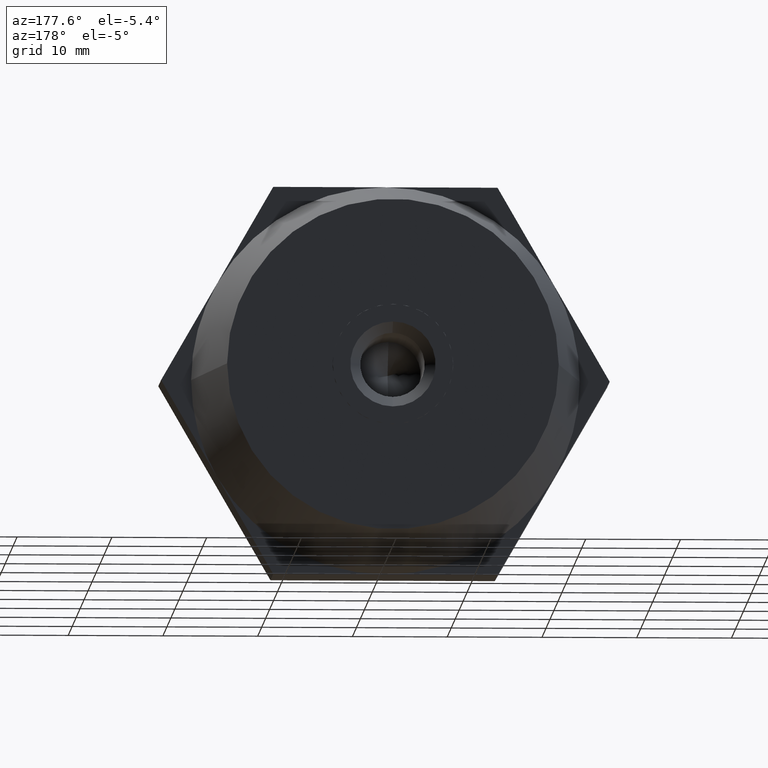
[diagram: clean part render]
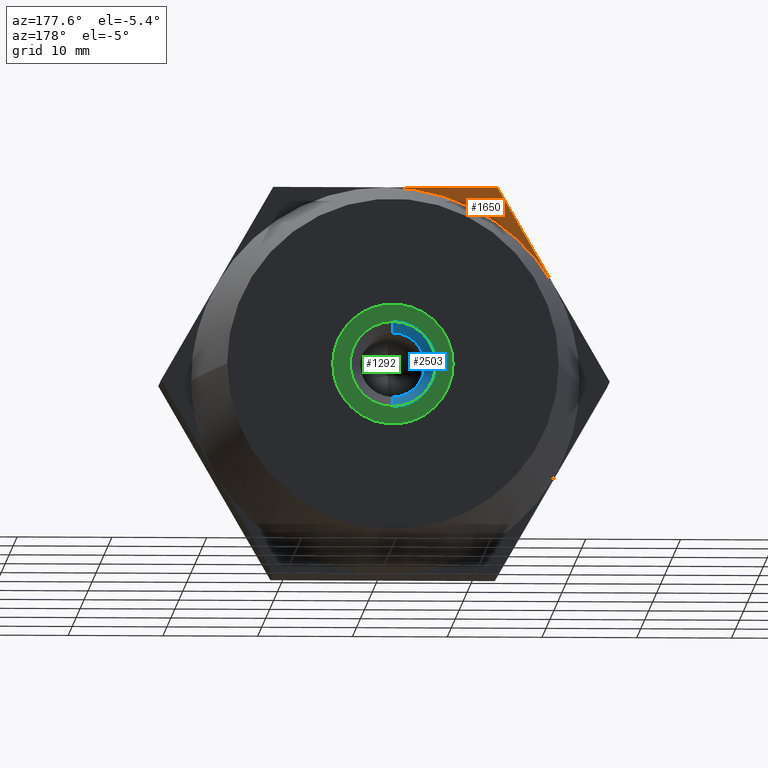
[diagram: same view with three faces highlighted in distinct colors, each labeled with its STEP entity id]
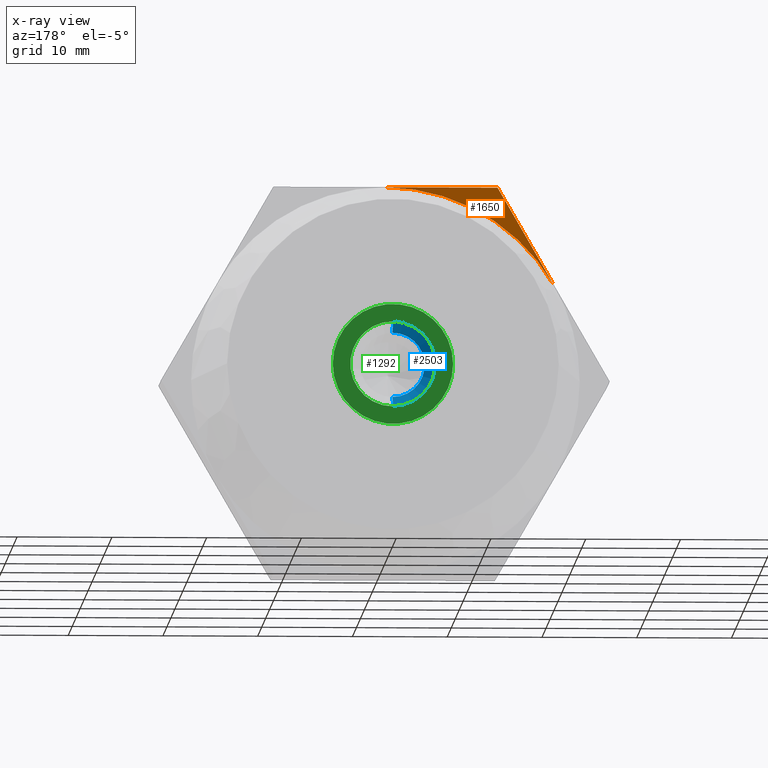
[diagram: x-ray of the same camera — body ghosted, the three highlighted faces saturated]
A machine part, auxiliary view with three faces highlighted in distinct colors.
The next image is the same camera in x-ray (body ghosted, the three faces saturated) — at least one of them is partly hidden behind the body in this view.
Their STEP definitions:

[orange] entity #1650 — the highlighted planar face has unit normal (0, 1, 0).
#150 = EDGE_CURVE ( 'NONE', #173, #1089, #2188, .T. ) ;
#173 = VERTEX_POINT ( 'NONE', #3638 ) ;
#281 = LINE ( 'NONE', #2677, #1715 ) ;
#520 = ORIENTED_EDGE ( 'NONE', *, *, #3507, .T. ) ;
#627 = CARTESIAN_POINT ( 'NONE',  ( -3.004629197474314500E-015, 3.500000000000000000, 20.50000000000000000 ) ) ;
#729 = CARTESIAN_POINT ( 'NONE',  ( -11.83568051838734000, 3.500000000000000000, 20.50000000000000000 ) ) ;
#804 = AXIS2_PLACEMENT_3D ( 'NONE', #805, #1093, #3436 ) ;
#805 = CARTESIAN_POINT ( 'NONE',  ( 2.326828918379969800E-015, 3.500000000000000000, 0.0000000000000000000 ) ) ;
#884 = ORIENTED_EDGE ( 'NONE', *, *, #2487, .T. ) ;
#1089 = VERTEX_POINT ( 'NONE', #627 ) ;
#1093 = DIRECTION ( 'NONE',  ( -1.224646799147353900E-016, 1.000000000000000000, 0.0000000000000000000 ) ) ;
#1116 = EDGE_LOOP ( 'NONE', ( #1138, #520, #884 ) ) ;
#1138 = ORIENTED_EDGE ( 'NONE', *, *, #150, .F. ) ;
#1153 = DIRECTION ( 'NONE',  ( 0.4999999999999998900, 0.0000000000000000000, 0.8660254037844387100 ) ) ;
#1484 = AXIS2_PLACEMENT_3D ( 'NONE', #2773, #3659, #2204 ) ;
#1604 = PLANE ( 'NONE',  #1484 ) ;
#1650 = ADVANCED_FACE ( 'NONE', ( #1805 ), #1604, .T. ) ;
#1715 = VECTOR ( 'NONE', #2730, 1000.000000000000000 ) ;
#1805 = FACE_OUTER_BOUND ( 'NONE', #1116, .T. ) ;
#2146 = VERTEX_POINT ( 'NONE', #729 ) ;
#2188 = CIRCLE ( 'NONE', #804, 20.50000000000000000 ) ;
#2204 = DIRECTION ( 'NONE',  ( 0.0000000000000000000, 0.0000000000000000000, 1.000000000000000000 ) ) ;
#2217 = VECTOR ( 'NONE', #1153, 1000.000000000000000 ) ;
#2487 = EDGE_CURVE ( 'NONE', #2146, #1089, #281, .T. ) ;
#2677 = CARTESIAN_POINT ( 'NONE',  ( -11.83568051838734000, 3.500000000000000000, 20.50000000000000000 ) ) ;
#2730 = DIRECTION ( 'NONE',  ( 1.000000000000000000, 0.0000000000000000000, 1.465672779255763900E-016 ) ) ;
#2773 = CARTESIAN_POINT ( 'NONE',  ( 0.0000000000000000000, 3.500000000000000000, 0.0000000000000000000 ) ) ;
#2930 = CARTESIAN_POINT ( 'NONE',  ( -23.67136103677464800, 3.500000000000000000, -6.892897232898371300E-017 ) ) ;
#2956 = LINE ( 'NONE', #2930, #2217 ) ;
#3436 = DIRECTION ( 'NONE',  ( -1.000000000000000000, -1.269309860470834500E-016, 0.0000000000000000000 ) ) ;
#3507 = EDGE_CURVE ( 'NONE', #173, #2146, #2956, .T. ) ;
#3638 = CARTESIAN_POINT ( 'NONE',  ( -17.75352077758099900, 3.500000000000000000, 10.25000000000000000 ) ) ;
#3659 = DIRECTION ( 'NONE',  ( 0.0000000000000000000, 1.000000000000000000, 0.0000000000000000000 ) ) ;

[blue] entity #2503 — the highlighted conical surface has half-angle 45 deg.
#81 = CARTESIAN_POINT ( 'NONE',  ( 5.510910596163088600E-016, 14.00000000000000000, -4.500000000000000000 ) ) ;
#110 = AXIS2_PLACEMENT_3D ( 'NONE', #490, #2820, #744 ) ;
#160 = CIRCLE ( 'NONE', #110, 4.500000000000000000 ) ;
#339 = EDGE_LOOP ( 'NONE', ( #2720, #3122, #2194, #1253 ) ) ;
#356 = CIRCLE ( 'NONE', #2573, 3.399999999999999900 ) ;
#490 = CARTESIAN_POINT ( 'NONE',  ( 0.0000000000000000000, 14.00000000000000000, 0.0000000000000000000 ) ) ;
#503 = DIRECTION ( 'NONE',  ( 0.0000000000000000000, 1.000000000000000000, 0.0000000000000000000 ) ) ;
#619 = DIRECTION ( 'NONE',  ( 0.0000000000000000000, 0.0000000000000000000, 1.000000000000000000 ) ) ;
#744 = DIRECTION ( 'NONE',  ( 0.0000000000000000000, 0.0000000000000000000, 1.000000000000000000 ) ) ;
#840 = CARTESIAN_POINT ( 'NONE',  ( 0.0000000000000000000, 14.00000000000000000, 4.500000000000000000 ) ) ;
#883 = VERTEX_POINT ( 'NONE', #1043 ) ;
#1043 = CARTESIAN_POINT ( 'NONE',  ( 4.163799117101000600E-016, 12.90000000000000000, -3.399999999999999900 ) ) ;
#1193 = CARTESIAN_POINT ( 'NONE',  ( 5.510910596163088600E-016, 14.00000000000000000, -4.500000000000000000 ) ) ;
#1250 = VECTOR ( 'NONE', #3159, 1000.000000000000000 ) ;
#1253 = ORIENTED_EDGE ( 'NONE', *, *, #1323, .F. ) ;
#1258 = EDGE_CURVE ( 'NONE', #3043, #3762, #160, .T. ) ;
#1323 = EDGE_CURVE ( 'NONE', #2187, #3762, #3101, .T. ) ;
#1351 = CARTESIAN_POINT ( 'NONE',  ( 0.0000000000000000000, 12.90000000000000000, 3.399999999999999900 ) ) ;
#1380 = CARTESIAN_POINT ( 'NONE',  ( 0.0000000000000000000, 12.90000000000000000, 0.0000000000000000000 ) ) ;
#1513 = CARTESIAN_POINT ( 'NONE',  ( 0.0000000000000000000, 14.00000000000000000, 0.0000000000000000000 ) ) ;
#1569 = CONICAL_SURFACE ( 'NONE', #3549, 4.500000000000000000, 0.7853981633974490600 ) ;
#1844 = VECTOR ( 'NONE', #2424, 1000.000000000000000 ) ;
#2130 = DIRECTION ( 'NONE',  ( 0.0000000000000000000, 1.000000000000000000, 0.0000000000000000000 ) ) ;
#2187 = VERTEX_POINT ( 'NONE', #1351 ) ;
#2194 = ORIENTED_EDGE ( 'NONE', *, *, #1258, .T. ) ;
#2424 = DIRECTION ( 'NONE',  ( 8.659560562354939000E-017, 0.7071067811865470200, -0.7071067811865480200 ) ) ;
#2503 = ADVANCED_FACE ( 'NONE', ( #3227 ), #1569, .F. ) ;
#2573 = AXIS2_PLACEMENT_3D ( 'NONE', #1380, #503, #2615 ) ;
#2615 = DIRECTION ( 'NONE',  ( 0.0000000000000000000, 0.0000000000000000000, 1.000000000000000000 ) ) ;
#2720 = ORIENTED_EDGE ( 'NONE', *, *, #3171, .F. ) ;
#2729 = CARTESIAN_POINT ( 'NONE',  ( 0.0000000000000000000, 14.00000000000000000, 4.500000000000000000 ) ) ;
#2820 = DIRECTION ( 'NONE',  ( 0.0000000000000000000, 1.000000000000000000, 0.0000000000000000000 ) ) ;
#2843 = EDGE_CURVE ( 'NONE', #883, #3043, #2957, .T. ) ;
#2957 = LINE ( 'NONE', #81, #1844 ) ;
#3043 = VERTEX_POINT ( 'NONE', #1193 ) ;
#3101 = LINE ( 'NONE', #840, #1250 ) ;
#3122 = ORIENTED_EDGE ( 'NONE', *, *, #2843, .T. ) ;
#3159 = DIRECTION ( 'NONE',  ( 0.0000000000000000000, 0.7071067811865470200, 0.7071067811865480200 ) ) ;
#3171 = EDGE_CURVE ( 'NONE', #883, #2187, #356, .T. ) ;
#3227 = FACE_OUTER_BOUND ( 'NONE', #339, .T. ) ;
#3549 = AXIS2_PLACEMENT_3D ( 'NONE', #1513, #2130, #619 ) ;
#3762 = VERTEX_POINT ( 'NONE', #2729 ) ;

[green] entity #1292 — the highlighted planar face has unit normal (0, 1, 0).
#19 = AXIS2_PLACEMENT_3D ( 'NONE', #584, #882, #1466 ) ;
#109 = CARTESIAN_POINT ( 'NONE',  ( 3.174999999999999800, 14.00000000000000000, -5.499261314031190100 ) ) ;
#110 = AXIS2_PLACEMENT_3D ( 'NONE', #490, #2820, #744 ) ;
#160 = CIRCLE ( 'NONE', #110, 4.500000000000000000 ) ;
#179 = ORIENTED_EDGE ( 'NONE', *, *, #383, .F. ) ;
#306 = DIRECTION ( 'NONE',  ( 0.0000000000000000000, 0.0000000000000000000, 1.000000000000000000 ) ) ;
#338 = DIRECTION ( 'NONE',  ( -0.0000000000000000000, -1.000000000000000000, -0.0000000000000000000 ) ) ;
#383 = EDGE_CURVE ( 'NONE', #3762, #3043, #2798, .T. ) ;
#390 = VERTEX_POINT ( 'NONE', #913 ) ;
#457 = ORIENTED_EDGE ( 'NONE', *, *, #1258, .F. ) ;
#490 = CARTESIAN_POINT ( 'NONE',  ( 0.0000000000000000000, 14.00000000000000000, 0.0000000000000000000 ) ) ;
#554 = CIRCLE ( 'NONE', #1530, 6.349999999999999600 ) ;
#584 = CARTESIAN_POINT ( 'NONE',  ( 1.830041491932940100E-015, 14.00000000000000000, 9.189900495611212100E-018 ) ) ;
#664 = DIRECTION ( 'NONE',  ( -0.0000000000000000000, -1.000000000000000000, -0.0000000000000000000 ) ) ;
#684 = CIRCLE ( 'NONE', #3527, 6.349999999999999600 ) ;
#721 = CARTESIAN_POINT ( 'NONE',  ( 1.830041491932940100E-015, 14.00000000000000000, 9.189900495611212100E-018 ) ) ;
#744 = DIRECTION ( 'NONE',  ( 0.0000000000000000000, 0.0000000000000000000, 1.000000000000000000 ) ) ;
#841 = CIRCLE ( 'NONE', #1799, 6.349999999999999600 ) ;
#871 = CIRCLE ( 'NONE', #3730, 6.349999999999999600 ) ;
#882 = DIRECTION ( 'NONE',  ( -0.0000000000000000000, -1.000000000000000000, -0.0000000000000000000 ) ) ;
#913 = CARTESIAN_POINT ( 'NONE',  ( 6.349999999999999600, 14.00000000000000000, -1.493124698241546000E-015 ) ) ;
#991 = VERTEX_POINT ( 'NONE', #1472 ) ;
#1086 = AXIS2_PLACEMENT_3D ( 'NONE', #721, #664, #3026 ) ;
#1136 = DIRECTION ( 'NONE',  ( 0.0000000000000000000, 1.000000000000000000, 0.0000000000000000000 ) ) ;
#1183 = EDGE_CURVE ( 'NONE', #390, #3183, #1533, .T. ) ;
#1193 = CARTESIAN_POINT ( 'NONE',  ( 5.510910596163088600E-016, 14.00000000000000000, -4.500000000000000000 ) ) ;
#1195 = DIRECTION ( 'NONE',  ( -0.0000000000000000000, -1.000000000000000000, -0.0000000000000000000 ) ) ;
#1198 = CARTESIAN_POINT ( 'NONE',  ( 1.830041491932940100E-015, 14.00000000000000000, 9.189900495611212100E-018 ) ) ;
#1258 = EDGE_CURVE ( 'NONE', #3043, #3762, #160, .T. ) ;
#1292 = ADVANCED_FACE ( 'NONE', ( #2790, #1899 ), #2256, .T. ) ;
#1354 = VERTEX_POINT ( 'NONE', #3455 ) ;
#1460 = EDGE_LOOP ( 'NONE', ( #1625, #2035, #1808, #2792, #3756, #2328 ) ) ;
#1466 = DIRECTION ( 'NONE',  ( 1.776356839400250500E-015, 0.0000000000000000000, 1.000000000000000000 ) ) ;
#1472 = CARTESIAN_POINT ( 'NONE',  ( -3.174999999999999800, 14.00000000000000000, -5.499261314031190100 ) ) ;
#1530 = AXIS2_PLACEMENT_3D ( 'NONE', #2973, #1195, #3255 ) ;
#1533 = CIRCLE ( 'NONE', #1086, 6.349999999999999600 ) ;
#1625 = ORIENTED_EDGE ( 'NONE', *, *, #1912, .F. ) ;
#1702 = VERTEX_POINT ( 'NONE', #109 ) ;
#1779 = DIRECTION ( 'NONE',  ( -0.0000000000000000000, -1.000000000000000000, -0.0000000000000000000 ) ) ;
#1799 = AXIS2_PLACEMENT_3D ( 'NONE', #1198, #1779, #306 ) ;
#1808 = ORIENTED_EDGE ( 'NONE', *, *, #1183, .F. ) ;
#1813 = DIRECTION ( 'NONE',  ( 0.0000000000000000000, 1.000000000000000000, 0.0000000000000000000 ) ) ;
#1864 = DIRECTION ( 'NONE',  ( 0.0000000000000000000, 0.0000000000000000000, 1.000000000000000000 ) ) ;
#1899 = FACE_BOUND ( 'NONE', #2134, .T. ) ;
#1912 = EDGE_CURVE ( 'NONE', #3599, #1354, #841, .T. ) ;
#2035 = ORIENTED_EDGE ( 'NONE', *, *, #3219, .F. ) ;
#2073 = CARTESIAN_POINT ( 'NONE',  ( -3.174999999999999800, 14.00000000000000000, 5.499261314031190100 ) ) ;
#2097 = CARTESIAN_POINT ( 'NONE',  ( 0.0000000000000000000, 14.00000000000000000, 0.0000000000000000000 ) ) ;
#2134 = EDGE_LOOP ( 'NONE', ( #179, #457 ) ) ;
#2256 = PLANE ( 'NONE',  #3574 ) ;
#2325 = CARTESIAN_POINT ( 'NONE',  ( 3.174999999999999800, 14.00000000000000000, 5.499261314031190100 ) ) ;
#2328 = ORIENTED_EDGE ( 'NONE', *, *, #2740, .F. ) ;
#2388 = EDGE_CURVE ( 'NONE', #991, #1702, #3736, .T. ) ;
#2431 = CARTESIAN_POINT ( 'NONE',  ( 1.830041491932940100E-015, 14.00000000000000000, 9.189900495611212100E-018 ) ) ;
#2533 = DIRECTION ( 'NONE',  ( -0.0000000000000000000, -1.000000000000000000, -0.0000000000000000000 ) ) ;
#2556 = CARTESIAN_POINT ( 'NONE',  ( 0.0000000000000000000, 14.00000000000000000, 0.0000000000000000000 ) ) ;
#2729 = CARTESIAN_POINT ( 'NONE',  ( 0.0000000000000000000, 14.00000000000000000, 4.500000000000000000 ) ) ;
#2740 = EDGE_CURVE ( 'NONE', #1354, #991, #554, .T. ) ;
#2772 = AXIS2_PLACEMENT_3D ( 'NONE', #2097, #1813, #3242 ) ;
#2790 = FACE_OUTER_BOUND ( 'NONE', #1460, .T. ) ;
#2792 = ORIENTED_EDGE ( 'NONE', *, *, #3760, .F. ) ;
#2798 = CIRCLE ( 'NONE', #2772, 4.500000000000000000 ) ;
#2820 = DIRECTION ( 'NONE',  ( 0.0000000000000000000, 1.000000000000000000, 0.0000000000000000000 ) ) ;
#2973 = CARTESIAN_POINT ( 'NONE',  ( 1.830041491932940100E-015, 14.00000000000000000, 9.189900495611212100E-018 ) ) ;
#3026 = DIRECTION ( 'NONE',  ( 8.881784197001252300E-016, 0.0000000000000000000, 1.000000000000000000 ) ) ;
#3043 = VERTEX_POINT ( 'NONE', #1193 ) ;
#3125 = DIRECTION ( 'NONE',  ( -8.881784197001252300E-016, 0.0000000000000000000, 1.000000000000000000 ) ) ;
#3183 = VERTEX_POINT ( 'NONE', #2325 ) ;
#3193 = DIRECTION ( 'NONE',  ( 0.0000000000000000000, 0.0000000000000000000, 1.000000000000000000 ) ) ;
#3219 = EDGE_CURVE ( 'NONE', #3183, #3599, #871, .T. ) ;
#3242 = DIRECTION ( 'NONE',  ( 0.0000000000000000000, 0.0000000000000000000, 1.000000000000000000 ) ) ;
#3255 = DIRECTION ( 'NONE',  ( 0.0000000000000000000, 0.0000000000000000000, 1.000000000000000000 ) ) ;
#3406 = CARTESIAN_POINT ( 'NONE',  ( 1.830041491932940100E-015, 14.00000000000000000, 9.189900495611212100E-018 ) ) ;
#3455 = CARTESIAN_POINT ( 'NONE',  ( -6.349999999999999600, 14.00000000000000000, 1.511504499232769800E-015 ) ) ;
#3527 = AXIS2_PLACEMENT_3D ( 'NONE', #3406, #2533, #3125 ) ;
#3574 = AXIS2_PLACEMENT_3D ( 'NONE', #2556, #1136, #3193 ) ;
#3599 = VERTEX_POINT ( 'NONE', #2073 ) ;
#3730 = AXIS2_PLACEMENT_3D ( 'NONE', #2431, #338, #1864 ) ;
#3736 = CIRCLE ( 'NONE', #19, 6.349999999999999600 ) ;
#3756 = ORIENTED_EDGE ( 'NONE', *, *, #2388, .F. ) ;
#3760 = EDGE_CURVE ( 'NONE', #1702, #390, #684, .T. ) ;
#3762 = VERTEX_POINT ( 'NONE', #2729 ) ;